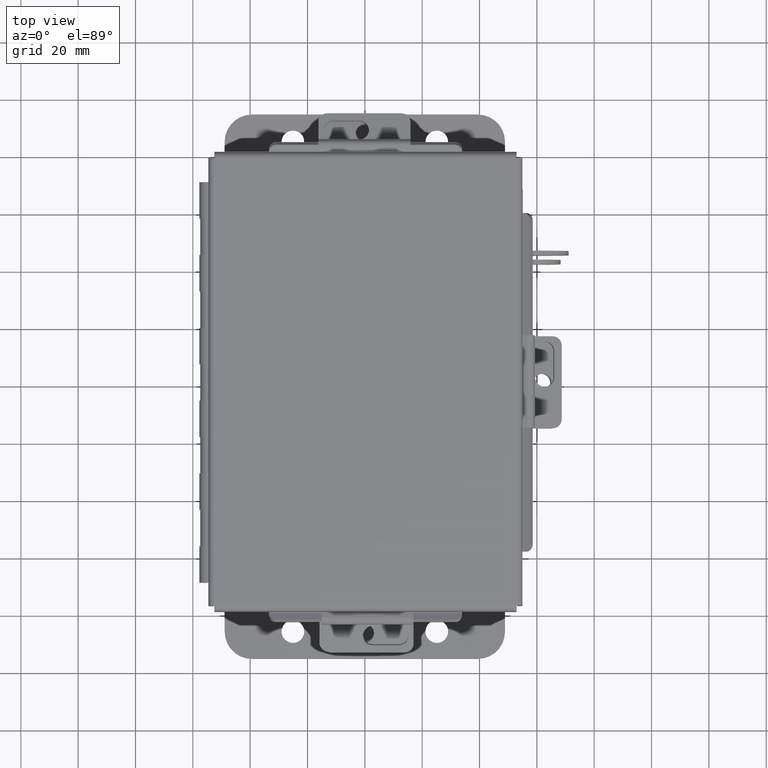
[diagram: clean part render]
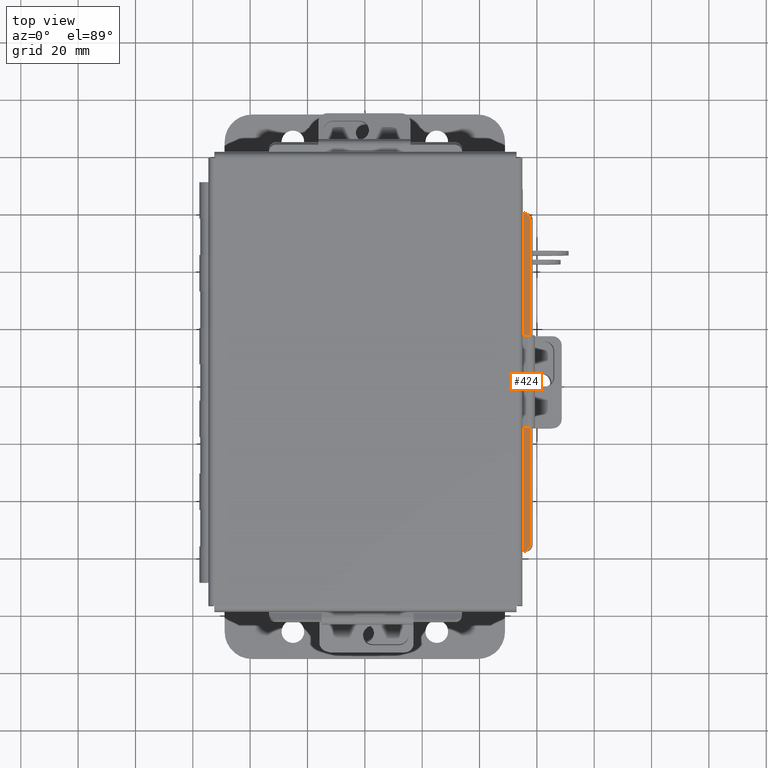
[diagram: same view with one face highlighted and labeled with its STEP entity id]
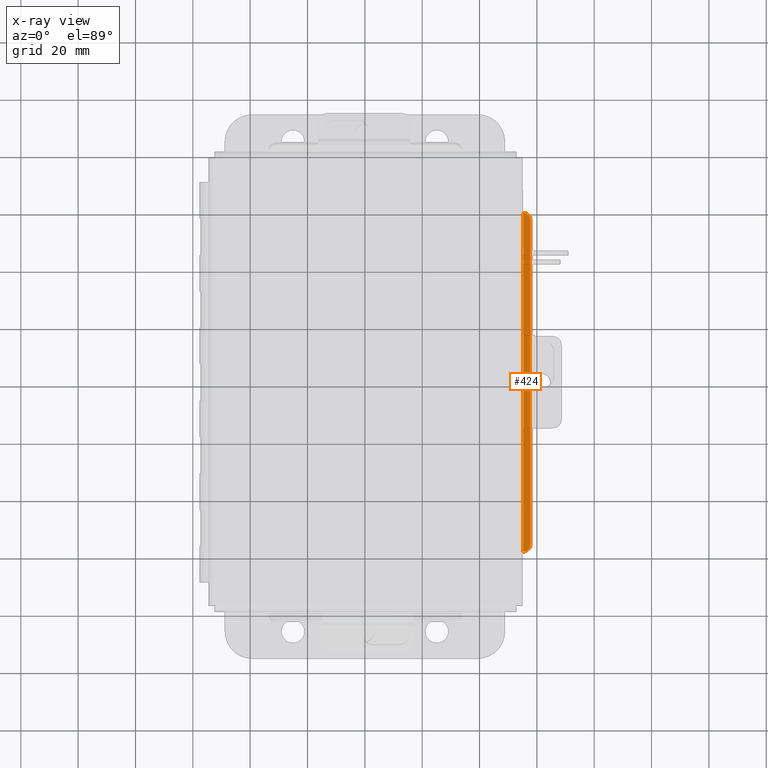
[diagram: x-ray of the same camera — body ghosted, the highlighted face saturated]
A machine part, top view. The second image highlights one B-rep face of the part: STEP entity #424.
The next image is the same camera in x-ray: the body ghosted, the highlighted face saturated — about 0% of this face is hidden behind the body in this view.
In plain terms, the highlighted planar face has unit normal (-0.5, 0, 0.866).
Its self-contained STEP definition (entity closure, byte-faithful):
#144 = ORIENTED_EDGE ( 'NONE', *, *, #5248, .F. ) ;
#274 = ORIENTED_EDGE ( 'NONE', *, *, #1209, .T. ) ;
#379 = ORIENTED_EDGE ( 'NONE', *, *, #10475, .F. ) ;
#424 = ADVANCED_FACE ( 'NONE', ( #6605 ), #6012, .T. ) ;
#488 = ORIENTED_EDGE ( 'NONE', *, *, #6073, .T. ) ;
#888 = VECTOR ( 'NONE', #11211, 39.37007874015748900 ) ;
#908 = VERTEX_POINT ( 'NONE', #3476 ) ;
#1209 = EDGE_CURVE ( 'NONE', #908, #1945, #11857, .T. ) ;
#1436 = CARTESIAN_POINT ( 'NONE',  ( -2.174103810567668200, -2.324478932188135200, 0.4769920976626977300 ) ) ;
#1482 = CARTESIAN_POINT ( 'NONE',  ( -2.174103810567668200, 2.324478932188135600, 0.4769920976626971800 ) ) ;
#1945 = VERTEX_POINT ( 'NONE', #1482 ) ;
#2038 = LINE ( 'NONE', #2369, #13344 ) ;
#2119 = DIRECTION ( 'NONE',  ( 8.378537426326480100E-034, 1.000000000000000000, -1.175251776144365200E-016 ) ) ;
#2369 = CARTESIAN_POINT ( 'NONE',  ( -2.260706350946112100, -2.324478932188135200, 0.4269920976626969100 ) ) ;
#2459 = CARTESIAN_POINT ( 'NONE',  ( -2.260706350946112100, -2.224478932188135100, 0.4269920976626969100 ) ) ;
#3476 = CARTESIAN_POINT ( 'NONE',  ( -2.260706350946112100, 2.224478932188135500, 0.4269920976626969100 ) ) ;
#3876 = DIRECTION ( 'NONE',  ( 0.5000000000000012200, 0.0000000000000000000, -0.8660254037844379300 ) ) ;
#4000 = DIRECTION ( 'NONE',  ( 0.5000000000000012200, 0.0000000000000000000, -0.8660254037844379300 ) ) ;
#4869 = VERTEX_POINT ( 'NONE', #7277 ) ;
#4906 = CARTESIAN_POINT ( 'NONE',  ( -0.7500695896320818100, 4.268512490100411300E-018, 1.299158638455099000 ) ) ;
#5053 = EDGE_CURVE ( 'NONE', #6824, #4869, #13931, .T. ) ;
#5248 = EDGE_CURVE ( 'NONE', #4869, #1945, #9321, .T. ) ;
#5528 = VECTOR ( 'NONE', #2119, 39.37007874015748100 ) ;
#5708 = LINE ( 'NONE', #13412, #11188 ) ;
#5743 = CARTESIAN_POINT ( 'NONE',  ( -2.260706350946112100, 2.324478932188135600, 0.4269920976626969100 ) ) ;
#5767 = ORIENTED_EDGE ( 'NONE', *, *, #5053, .F. ) ;
#6012 = PLANE ( 'NONE',  #8038 ) ;
#6073 = EDGE_CURVE ( 'NONE', #7223, #9885, #11871, .T. ) ;
#6232 = DIRECTION ( 'NONE',  ( 0.5000000000000012200, 0.0000000000000000000, -0.8660254037844379300 ) ) ;
#6448 = EDGE_CURVE ( 'NONE', #908, #9885, #2038, .T. ) ;
#6580 = AXIS2_PLACEMENT_3D ( 'NONE', #12767, #6232, #13876 ) ;
#6605 = FACE_OUTER_BOUND ( 'NONE', #6877, .T. ) ;
#6824 = VERTEX_POINT ( 'NONE', #9610 ) ;
#6840 = DIRECTION ( 'NONE',  ( 0.8660254037844379300, -3.574525976782709700E-031, 0.5000000000000012200 ) ) ;
#6877 = EDGE_LOOP ( 'NONE', ( #379, #488, #9451, #274, #144, #5767 ) ) ;
#7223 = VERTEX_POINT ( 'NONE', #1436 ) ;
#7277 = CARTESIAN_POINT ( 'NONE',  ( -2.169750000000002700, 2.324478932188135600, 0.4795057713659400300 ) ) ;
#8038 = AXIS2_PLACEMENT_3D ( 'NONE', #4906, #3876, #11528 ) ;
#9321 = LINE ( 'NONE', #5743, #888 ) ;
#9451 = ORIENTED_EDGE ( 'NONE', *, *, #6448, .F. ) ;
#9610 = CARTESIAN_POINT ( 'NONE',  ( -2.169750000000002700, -2.324478932188135200, 0.4795057713659400300 ) ) ;
#9885 = VERTEX_POINT ( 'NONE', #2459 ) ;
#10475 = EDGE_CURVE ( 'NONE', #7223, #6824, #5708, .T. ) ;
#10540 = CARTESIAN_POINT ( 'NONE',  ( -2.174103810567668200, 2.224478932188135500, 0.4769920976626971800 ) ) ;
#11188 = VECTOR ( 'NONE', #6840, 39.37007874015748100 ) ;
#11211 = DIRECTION ( 'NONE',  ( -0.8660254037844377100, 7.395570986446984600E-032, -0.5000000000000012200 ) ) ;
#11528 = DIRECTION ( 'NONE',  ( -0.8660254037844379300, 3.574525976782709700E-031, -0.5000000000000012200 ) ) ;
#11639 = DIRECTION ( 'NONE',  ( -0.8660254037844379300, 0.0000000000000000000, -0.5000000000000012200 ) ) ;
#11857 = CIRCLE ( 'NONE', #13372, 0.1000000000000000600 ) ;
#11871 = CIRCLE ( 'NONE', #6580, 0.1000000000000000600 ) ;
#12249 = DIRECTION ( 'NONE',  ( -2.258600338820354400E-033, -1.000000000000000000, 0.0000000000000000000 ) ) ;
#12767 = CARTESIAN_POINT ( 'NONE',  ( -2.174103810567668200, -2.224478932188135100, 0.4769920976626971800 ) ) ;
#13344 = VECTOR ( 'NONE', #12249, 39.37007874015748100 ) ;
#13372 = AXIS2_PLACEMENT_3D ( 'NONE', #10540, #4000, #11639 ) ;
#13412 = CARTESIAN_POINT ( 'NONE',  ( -2.156250000000002200, -2.324478932188135200, 0.4872999999999994600 ) ) ;
#13876 = DIRECTION ( 'NONE',  ( -0.8660254037844379300, 0.0000000000000000000, -0.5000000000000012200 ) ) ;
#13931 = LINE ( 'NONE', #14105, #5528 ) ;
#14105 = CARTESIAN_POINT ( 'NONE',  ( -2.169750000000002300, -2.324478932188135200, 0.4795057713659400300 ) ) ;